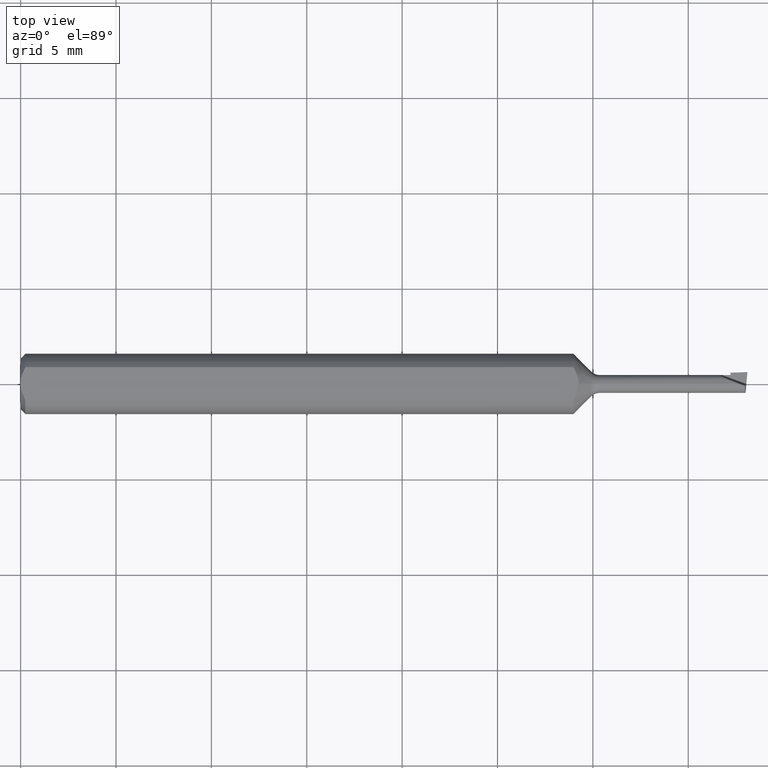
[diagram: clean part render]
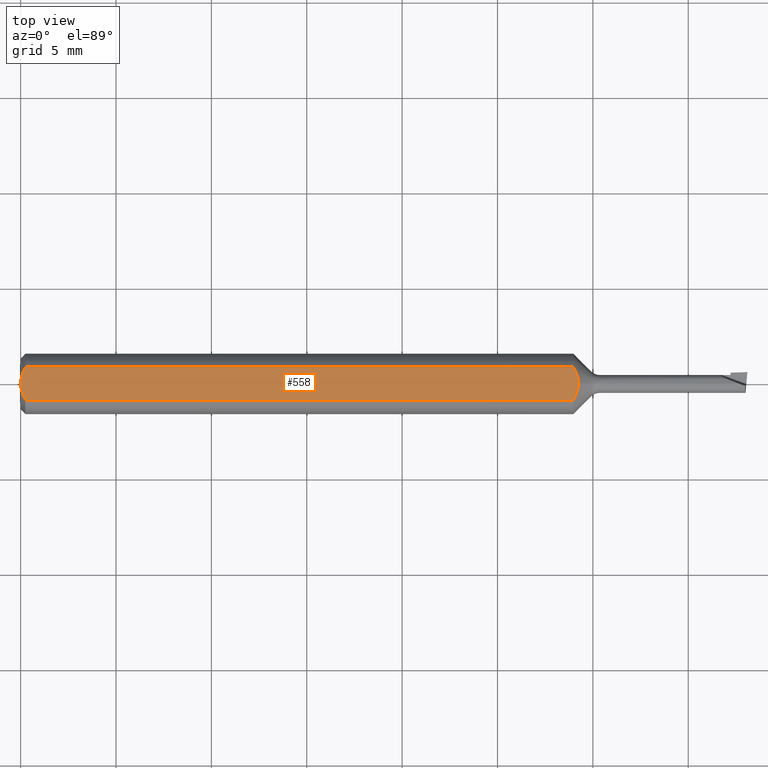
[diagram: same view with one face highlighted and labeled with its STEP entity id]
A machine part, top view. The second image highlights one B-rep face of the part: STEP entity #558.
In plain terms, the highlighted planar face has unit normal (0, 0, -1).
Its self-contained STEP definition (entity closure, byte-faithful):
#5 = EDGE_LOOP ( 'NONE', ( #274, #120, #220, #447, #634, #233 ) ) ;
#15 = EDGE_CURVE ( 'NONE', #426, #384, #514, .T. ) ;
#24 = EDGE_CURVE ( 'NONE', #227, #40, #254, .T. ) ;
#40 = VERTEX_POINT ( 'NONE', #600 ) ;
#82 = CARTESIAN_POINT ( 'NONE',  ( 0.007185421074056205608, 0.02868573718286560742, 0.05235000000000002152 ) ) ;
#84 = CARTESIAN_POINT ( 'NONE',  ( 0.000000000000000000, 0.000000000000000000, 0.05235000000000033377 ) ) ;
#88 = CARTESIAN_POINT ( 'NONE',  ( 0.01000000000000840841, -0.03386738844395137393, 0.05235000000000001458 ) ) ;
#89 = CARTESIAN_POINT ( 'NONE',  ( 1.151149999999999896, -0.005924734429433318843, 0.05235000000000002152 ) ) ;
#101 = DIRECTION ( 'NONE',  ( -1.000000000000000000, -0.000000000000000000, -0.000000000000000000 ) ) ;
#112 = CARTESIAN_POINT ( 'NONE',  ( 0.000000000000000000, -0.03386738844375220686, 0.05235000000000000070 ) ) ;
#113 = VECTOR ( 'NONE', #515, 39.37007874015748143 ) ;
#120 = ORIENTED_EDGE ( 'NONE', *, *, #24, .T. ) ;
#128 = AXIS2_PLACEMENT_3D ( 'NONE', #387, #591, #290 ) ;
#137 = CARTESIAN_POINT ( 'NONE',  ( 1.151150000000000340, 0.005920815533600999603, 0.05235000000000002152 ) ) ;
#138 = EDGE_CURVE ( 'NONE', #516, #170, #293, .T. ) ;
#170 = VERTEX_POINT ( 'NONE', #559 ) ;
#177 = VECTOR ( 'NONE', #101, 39.37007874015748143 ) ;
#185 = CARTESIAN_POINT ( 'NONE',  ( 1.141150000000000109, 0.03386738844375220686, 0.05235000000000000070 ) ) ;
#188 = CARTESIAN_POINT ( 'NONE',  ( 1.144001488371463315, -0.02861778674340263381, 0.05235000000000002152 ) ) ;
#192 = CARTESIAN_POINT ( 'NONE',  ( 1.146488788636946587, 0.02320328458619741463, 0.05235000000000002152 ) ) ;
#199 = PLANE ( 'NONE',  #128 ) ;
#220 = ORIENTED_EDGE ( 'NONE', *, *, #564, .T. ) ;
#227 = VERTEX_POINT ( 'NONE', #410 ) ;
#233 = ORIENTED_EDGE ( 'NONE', *, *, #15, .F. ) ;
#241 = CARTESIAN_POINT ( 'NONE',  ( 1.146482645487523655, -0.02321992653401852222, 0.05235000000000001458 ) ) ;
#254 = B_SPLINE_CURVE_WITH_KNOTS ( 'NONE', 3,
 ( #537, #82, #281, #472, #580, #551 ),
 .UNSPECIFIED., .F., .F.,
 ( 4, 2, 4 ),
 ( 0.0009229516234078821539, 0.001371626545108044996, 0.001820301466808207621 ),
 .UNSPECIFIED. ) ;
#274 = ORIENTED_EDGE ( 'NONE', *, *, #275, .F. ) ;
#275 = EDGE_CURVE ( 'NONE', #227, #426, #458, .T. ) ;
#278 = CARTESIAN_POINT ( 'NONE',  ( 1.143992034642578703, 0.02863519109676610983, 0.05235000000000002152 ) ) ;
#281 = CARTESIAN_POINT ( 'NONE',  ( 0.004671770759546769666, 0.02323517832780105236, 0.05235000000000002152 ) ) ;
#282 = CARTESIAN_POINT ( 'NONE',  ( -1.070637973615595603E-15, -0.005965286321711177862, 0.05235000000000002152 ) ) ;
#283 = CARTESIAN_POINT ( 'NONE',  ( 1.151150000000000118, -1.477724062875314838E-21, 0.05235000000000001458 ) ) ;
#284 = CARTESIAN_POINT ( 'NONE',  ( 1.141150000000000109, 0.03386738844375220686, 0.05235000000000000070 ) ) ;
#290 = DIRECTION ( 'NONE',  ( -1.000000000000000000, 0.000000000000000000, -0.000000000000000000 ) ) ;
#293 = LINE ( 'NONE', #112, #177 ) ;
#313 = CARTESIAN_POINT ( 'NONE',  ( 0.000000000000000000, 0.03386738844375220686, 0.05235000000000000070 ) ) ;
#327 = CARTESIAN_POINT ( 'NONE',  ( 0.004679365186825695105, -0.02325953974091124477, 0.05235000000000000764 ) ) ;
#374 = CARTESIAN_POINT ( 'NONE',  ( 1.150078879331740023, -0.01191647624495716616, 0.05235000000000002152 ) ) ;
#382 = CARTESIAN_POINT ( 'NONE',  ( 1.150078615661969117, 0.01191463382135334557, 0.05235000000000001458 ) ) ;
#384 = VERTEX_POINT ( 'NONE', #535 ) ;
#387 = CARTESIAN_POINT ( 'NONE',  ( 1.500000000000000222, 0.06235000000000000264, 0.05235000000000001458 ) ) ;
#401 = B_SPLINE_CURVE_WITH_KNOTS ( 'NONE', 3,
 ( #283, #89, #374, #241, #188, #416 ),
 .UNSPECIFIED., .F., .F.,
 ( 4, 2, 4 ),
 ( 0.002916663230282895512, 0.003365861382119353894, 0.003815059533955811842 ),
 .UNSPECIFIED. ) ;
#410 = CARTESIAN_POINT ( 'NONE',  ( 0.009999999999999890921, 0.03386738844375217911, 0.05235000000000001458 ) ) ;
#416 = CARTESIAN_POINT ( 'NONE',  ( 1.141150000000000109, -0.03386738844375220686, 0.05235000000000000070 ) ) ;
#426 = VERTEX_POINT ( 'NONE', #185 ) ;
#434 = EDGE_CURVE ( 'NONE', #384, #516, #401, .T. ) ;
#447 = ORIENTED_EDGE ( 'NONE', *, *, #138, .F. ) ;
#458 = LINE ( 'NONE', #313, #113 ) ;
#469 = CARTESIAN_POINT ( 'NONE',  ( 0.001055043921644571291, -0.01186408073217194367, 0.05235000000000002152 ) ) ;
#472 = CARTESIAN_POINT ( 'NONE',  ( 0.001063697276021357847, 0.01189177144351693735, 0.05235000000000001458 ) ) ;
#510 = B_SPLINE_CURVE_WITH_KNOTS ( 'NONE', 3,
 ( #84, #282, #469, #327, #625, #88 ),
 .UNSPECIFIED., .F., .F.,
 ( 4, 2, 4 ),
 ( 0.001820301466808207621, 0.002269751589840481119, 0.002719201712872754834 ),
 .UNSPECIFIED. ) ;
#514 = B_SPLINE_CURVE_WITH_KNOTS ( 'NONE', 3,
 ( #284, #278, #192, #382, #137, #586 ),
 .UNSPECIFIED., .F., .F.,
 ( 4, 2, 4 ),
 ( 0.002018861167849336693, 0.002467762199066116102, 0.002916663230282895512 ),
 .UNSPECIFIED. ) ;
#515 = DIRECTION ( 'NONE',  ( 1.000000000000000000, 0.000000000000000000, 0.000000000000000000 ) ) ;
#516 = VERTEX_POINT ( 'NONE', #587 ) ;
#535 = CARTESIAN_POINT ( 'NONE',  ( 1.151150000000000118, -1.477724062875314838E-21, 0.05235000000000001458 ) ) ;
#537 = CARTESIAN_POINT ( 'NONE',  ( 0.009999999999999890921, 0.03386738844375217911, 0.05235000000000001458 ) ) ;
#540 = FACE_OUTER_BOUND ( 'NONE', #5, .T. ) ;
#551 = CARTESIAN_POINT ( 'NONE',  ( 0.000000000000000000, 0.000000000000000000, 0.05235000000000033377 ) ) ;
#558 = ADVANCED_FACE ( 'NONE', ( #540 ), #199, .F. ) ;
#559 = CARTESIAN_POINT ( 'NONE',  ( 0.01000000000000840841, -0.03386738844395137393, 0.05235000000000001458 ) ) ;
#564 = EDGE_CURVE ( 'NONE', #40, #170, #510, .T. ) ;
#580 = CARTESIAN_POINT ( 'NONE',  ( -1.099542139246802830E-15, 0.005954997531773979953, 0.05235000000000002152 ) ) ;
#586 = CARTESIAN_POINT ( 'NONE',  ( 1.151150000000000118, -1.477724062875314838E-21, 0.05235000000000001458 ) ) ;
#587 = CARTESIAN_POINT ( 'NONE',  ( 1.141150000000000109, -0.03386738844375220686, 0.05235000000000000070 ) ) ;
#591 = DIRECTION ( 'NONE',  ( 0.000000000000000000, 0.000000000000000000, -1.000000000000000000 ) ) ;
#600 = CARTESIAN_POINT ( 'NONE',  ( 0.000000000000000000, 0.000000000000000000, 0.05235000000000033377 ) ) ;
#625 = CARTESIAN_POINT ( 'NONE',  ( 0.007163450771416182694, -0.02864528976632487248, 0.05235000000000001458 ) ) ;
#634 = ORIENTED_EDGE ( 'NONE', *, *, #434, .F. ) ;